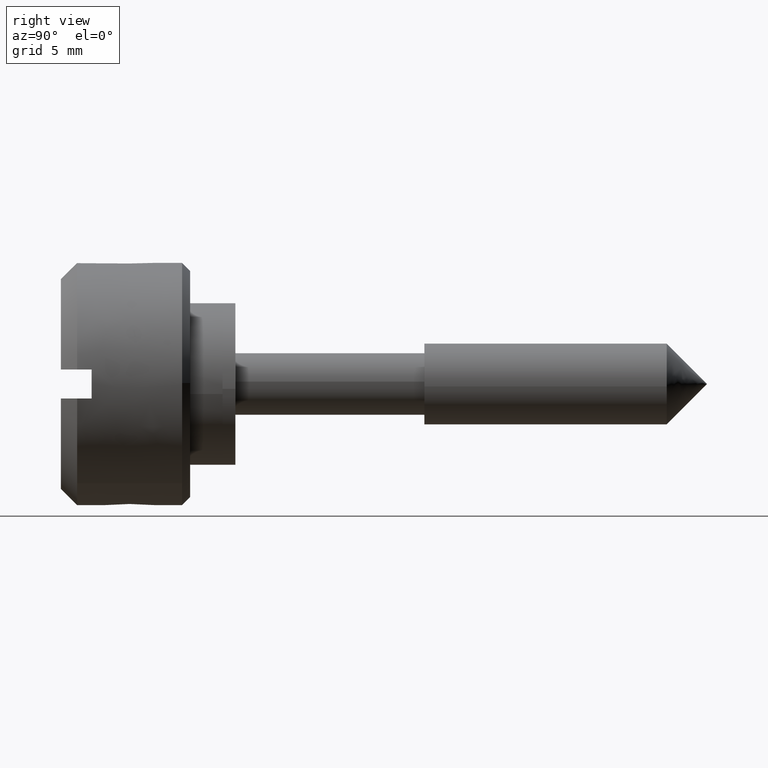
[diagram: clean part render]
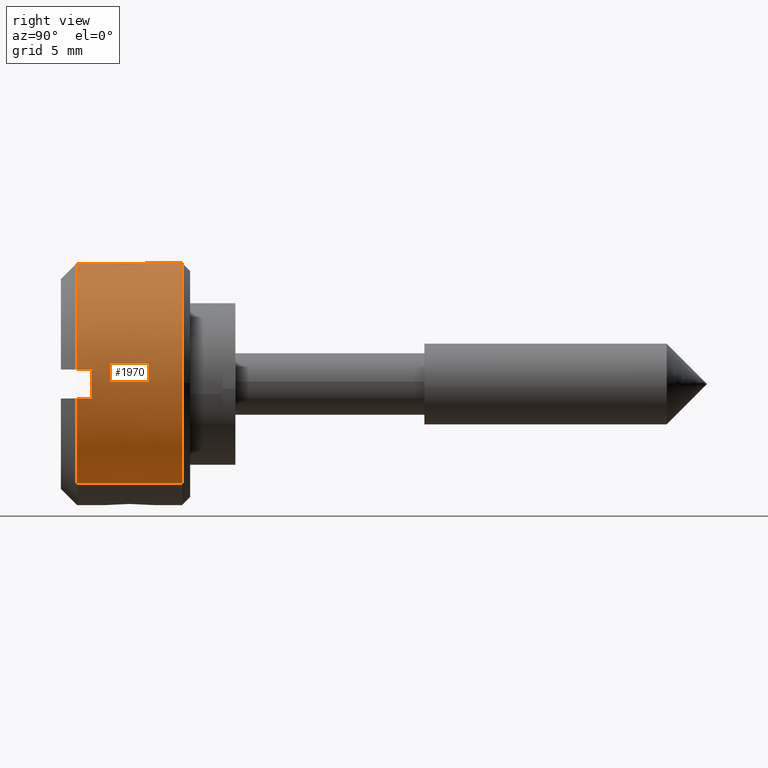
[diagram: same view with one face highlighted and labeled with its STEP entity id]
A machine part, right view. The second image highlights one B-rep face of the part: STEP entity #1970.
In plain terms, the highlighted face is a freeform B-spline surface patch.
Its self-contained STEP definition (entity closure, byte-faithful):
#1401=CARTESIAN_POINT('',(-2.500000000000328,-7.499714422981644,0.065449016240610));
#1402=VERTEX_POINT('',#1401);
#1403=CARTESIAN_POINT('',(-2.499999999999945,0.0,7.500000000000000));
#1404=VERTEX_POINT('',#1403);
#1405=CARTESIAN_POINT('',(-2.500000000000329,-7.499714422981644,0.065449016240610));
#1406=CARTESIAN_POINT('',(-2.499999999999945,-7.434834079456779,7.500000000000000));
#1407=CARTESIAN_POINT('',(-2.499999999999945,0.0,7.500000000000000));
#1415=(BOUNDED_CURVE()B_SPLINE_CURVE(2,(#1405,#1406,#1407),.UNSPECIFIED.,.F.,.U.)B_SPLINE_CURVE_WITH_KNOTS((3,3),(0.251539894335119,0.500000000000000),.UNSPECIFIED.)CURVE()GEOMETRIC_REPRESENTATION_ITEM()RATIONAL_B_SPLINE_CURVE((0.996414028100101,0.708910879620330,1.0))REPRESENTATION_ITEM(''));
#1416=EDGE_CURVE('',#1402,#1404,#1415,.T.);
#1464=CARTESIAN_POINT('',(-2.499999999999945,4.969649450100505,5.617168712359836));
#1465=VERTEX_POINT('',#1464);
#1481=CARTESIAN_POINT('',(-2.499999999999945,0.0,7.500000000000000));
#1482=CARTESIAN_POINT('',(-2.499999999999945,2.841495119341850,7.500000000000001));
#1483=CARTESIAN_POINT('',(-2.499999999999946,4.969649450100505,5.617168712359836));
#1491=(BOUNDED_CURVE()B_SPLINE_CURVE(2,(#1481,#1482,#1483),.UNSPECIFIED.,.F.,.U.)B_SPLINE_CURVE_WITH_KNOTS((3,3),(0.500000000000000,0.615779863551538),.UNSPECIFIED.)CURVE()GEOMETRIC_REPRESENTATION_ITEM()RATIONAL_B_SPLINE_CURVE((1.0,0.864355452362431,0.854350162460765))REPRESENTATION_ITEM(''));
#1492=EDGE_CURVE('',#1404,#1465,#1491,.T.);
#1515=CARTESIAN_POINT('',(-2.499999999999945,-4.287826768769291,-6.153417067046060));
#1516=VERTEX_POINT('',#1515);
#1517=CARTESIAN_POINT('',(-2.499999999999945,-4.287826768769291,-6.153417067046060));
#1518=CARTESIAN_POINT('',(-2.499999999999945,-7.499999999999999,-3.915109112828171));
#1519=CARTESIAN_POINT('',(-2.499999999999945,-7.500000000000000,0.0));
#1520=CARTESIAN_POINT('',(-2.499999999999945,-7.500000000000000,0.032725131158064));
#1521=CARTESIAN_POINT('',(-2.500000000000329,-7.499714422981644,0.065449016240610));
#1529=(BOUNDED_CURVE()B_SPLINE_CURVE(2,(#1517,#1518,#1519,#1520,#1521),.UNSPECIFIED.,.F.,.U.)B_SPLINE_CURVE_WITH_KNOTS((3,2,3),(0.098251814606992,0.250000000000000,0.251539894335119),.UNSPECIFIED.)CURVE()GEOMETRIC_REPRESENTATION_ITEM()RATIONAL_B_SPLINE_CURVE((0.860259149644353,0.822215942124565,1.0,0.998195901566218,0.996414028100101))REPRESENTATION_ITEM(''));
#1530=EDGE_CURVE('',#1516,#1402,#1529,.T.);
#1803=CARTESIAN_POINT('',(-8.999899999999975,-4.287828965341124,-6.153415536430242));
#1804=VERTEX_POINT('',#1803);
#1851=CARTESIAN_POINT('',(-8.999899999999993,4.969650336873769,5.617167927809388));
#1852=VERTEX_POINT('',#1851);
#1866=CARTESIAN_POINT('',(-8.999899999999993,4.969650336873769,5.617167927809388));
#1867=CARTESIAN_POINT('',(-2.499999999999945,4.969649450100505,5.617168712359836));
#1868=QUASI_UNIFORM_CURVE('',1,(#1866,#1867),.UNSPECIFIED.,.F.,.U.);
#1869=EDGE_CURVE('',#1852,#1465,#1868,.T.);
#1874=CARTESIAN_POINT('',(-8.999899999999975,-4.287828965341124,-6.153415536430242));
#1875=CARTESIAN_POINT('',(-2.499999999999945,-4.287826768769291,-6.153417067046060));
#1876=QUASI_UNIFORM_CURVE('',1,(#1874,#1875),.UNSPECIFIED.,.F.,.U.);
#1877=EDGE_CURVE('',#1804,#1516,#1876,.T.);
#1882=CARTESIAN_POINT('',(-9.162397500000004,4.969650361618027,5.617167905917516));
#1883=CARTESIAN_POINT('',(-9.162397500000004,-0.647517544299490,10.586818267535543));
#1884=CARTESIAN_POINT('',(-9.162397500000004,-5.617167905917516,4.969650361618027));
#1885=CARTESIAN_POINT('',(-9.162397500000004,-10.586818267535543,-0.647517544299490));
#1886=CARTESIAN_POINT('',(-9.162397500000004,-4.969650361618027,-5.617167905917516));
#1887=CARTESIAN_POINT('',(-9.162397500000004,-4.644271253485768,-5.905039023440805));
#1888=CARTESIAN_POINT('',(-9.162397500000004,-4.287829581630136,-6.153415106987136));
#1889=CARTESIAN_POINT('',(-2.333440062499943,4.969650361618027,5.617167905917516));
#1890=CARTESIAN_POINT('',(-2.333440062499943,-0.647517544299490,10.586818267535543));
#1891=CARTESIAN_POINT('',(-2.333440062499943,-5.617167905917516,4.969650361618027));
#1892=CARTESIAN_POINT('',(-2.333440062499943,-10.586818267535543,-0.647517544299490));
#1893=CARTESIAN_POINT('',(-2.333440062499943,-4.969650361618027,-5.617167905917516));
#1894=CARTESIAN_POINT('',(-2.333440062499944,-4.644271253485768,-5.905039023440805));
#1895=CARTESIAN_POINT('',(-2.333440062499944,-4.287829581630136,-6.153415106987136));
#1903=(BOUNDED_SURFACE()B_SPLINE_SURFACE(2,1,((#1882,#1889),(#1883,#1890),(#1884,#1891),(#1885,#1892),(#1886,#1893),(#1887,#1894),(#1888,#1895)),.UNSPECIFIED.,.F.,.F.,.U.)B_SPLINE_SURFACE_WITH_KNOTS((3,2,2,3),(2,2),(0.0,12.426406871192849,24.852813742385688,25.846926292081118),(0.0,6.828957437500061),.UNSPECIFIED.)GEOMETRIC_REPRESENTATION_ITEM()RATIONAL_B_SPLINE_SURFACE(((1.0,1.0),(0.707106781186548,0.707106781186548),(1.0,1.0),(0.707106781186548,0.707106781186548),(1.0,1.0),(0.976568542494924,0.976568542494924),(0.956886118190660,0.956886118190660)))REPRESENTATION_ITEM('')SURFACE());
#1904=CARTESIAN_POINT('',(-8.999900000000000,-7.445804187594510,-0.900000000000000));
#1905=VERTEX_POINT('',#1904);
#1906=CARTESIAN_POINT('',(-8.999900000000000,-7.445804187594514,-0.899999999999998));
#1907=CARTESIAN_POINT('',(-8.999900000000000,-7.042853579202849,-4.233657030396031));
#1908=CARTESIAN_POINT('',(-8.999899999999975,-4.287828965341124,-6.153415536430242));
#1916=(BOUNDED_CURVE()B_SPLINE_CURVE(2,(#1906,#1907,#1908),.UNSPECIFIED.,.F.,.U.)B_SPLINE_CURVE_WITH_KNOTS((3,3),(0.0,0.288480238268540),.UNSPECIFIED.)CURVE()GEOMETRIC_REPRESENTATION_ITEM()RATIONAL_B_SPLINE_CURVE((1.0,0.854797209245235,0.877146961187237))REPRESENTATION_ITEM(''));
#1917=EDGE_CURVE('',#1905,#1804,#1916,.T.);
#1918=ORIENTED_EDGE('',*,*,#1917,.T.);
#1919=ORIENTED_EDGE('',*,*,#1877,.T.);
#1920=ORIENTED_EDGE('',*,*,#1530,.T.);
#1921=ORIENTED_EDGE('',*,*,#1416,.T.);
#1922=ORIENTED_EDGE('',*,*,#1492,.T.);
#1923=ORIENTED_EDGE('',*,*,#1869,.F.);
#1924=CARTESIAN_POINT('',(-8.999900000000000,-7.445804187594519,0.900000000000000));
#1925=VERTEX_POINT('',#1924);
#1926=CARTESIAN_POINT('',(-8.999899999999993,4.969650336873769,5.617167927809388));
#1927=CARTESIAN_POINT('',(-8.999900000000000,2.841495777434199,7.500000000000000));
#1928=CARTESIAN_POINT('',(-8.999900000000000,0.0,7.500000000000000));
#1929=CARTESIAN_POINT('',(-8.999900000000000,-6.648039453209386,7.499999999999999));
#1930=CARTESIAN_POINT('',(-8.999900000000000,-7.445804187594514,0.900000000000001));
#1938=(BOUNDED_CURVE()B_SPLINE_CURVE(2,(#1926,#1927,#1928,#1929,#1930),.UNSPECIFIED.,.F.,.U.)B_SPLINE_CURVE_WITH_KNOTS((3,2,3),(0.250310220134581,0.500000000000000,1.0),.UNSPECIFIED.)CURVE()GEOMETRIC_REPRESENTATION_ITEM()RATIONAL_B_SPLINE_CURVE((0.874165932435041,0.874321883963324,1.0,0.748331477354788,1.0))REPRESENTATION_ITEM(''));
#1939=EDGE_CURVE('',#1852,#1925,#1938,.T.);
#1940=ORIENTED_EDGE('',*,*,#1939,.T.);
#1941=CARTESIAN_POINT('',(-8.099900000000000,-7.445804187594519,0.900000000000000));
#1942=VERTEX_POINT('',#1941);
#1943=CARTESIAN_POINT('',(-8.999900000000000,-7.445804187594519,0.900000000000000));
#1944=CARTESIAN_POINT('',(-8.099900000000000,-7.445804187594519,0.900000000000000));
#1945=QUASI_UNIFORM_CURVE('',1,(#1943,#1944),.UNSPECIFIED.,.F.,.U.);
#1946=EDGE_CURVE('',#1925,#1942,#1945,.T.);
#1947=ORIENTED_EDGE('',*,*,#1946,.T.);
#1948=CARTESIAN_POINT('',(-8.099900000000000,-7.445804187594550,-0.900000000000000));
#1949=VERTEX_POINT('',#1948);
#1950=CARTESIAN_POINT('',(-8.099900000000000,-7.445804187594514,0.900000000000000));
#1951=CARTESIAN_POINT('',(-8.099900000000000,-7.554590287737940,8.673617E-016));
#1952=CARTESIAN_POINT('',(-8.099900000000000,-7.445804187594550,-0.900000000000000));
#1960=(BOUNDED_CURVE()B_SPLINE_CURVE(2,(#1950,#1951,#1952),.UNSPECIFIED.,.F.,.U.)CURVE()GEOMETRIC_REPRESENTATION_ITEM()QUASI_UNIFORM_CURVE()RATIONAL_B_SPLINE_CURVE((1.0,0.992773891679269,1.0))REPRESENTATION_ITEM(''));
#1961=EDGE_CURVE('',#1942,#1949,#1960,.T.);
#1962=ORIENTED_EDGE('',*,*,#1961,.T.);
#1963=CARTESIAN_POINT('',(-8.099900000000000,-7.445804187594550,-0.900000000000000));
#1964=CARTESIAN_POINT('',(-8.999900000000000,-7.445804187594510,-0.900000000000000));
#1965=QUASI_UNIFORM_CURVE('',1,(#1963,#1964),.UNSPECIFIED.,.F.,.U.);
#1966=EDGE_CURVE('',#1949,#1905,#1965,.T.);
#1967=ORIENTED_EDGE('',*,*,#1966,.T.);
#1968=EDGE_LOOP('',(#1918,#1919,#1920,#1921,#1922,#1923,#1940,#1947,#1962,#1967));
#1969=FACE_OUTER_BOUND('',#1968,.T.);
#1970=ADVANCED_FACE('',(#1969),#1903,.T.);